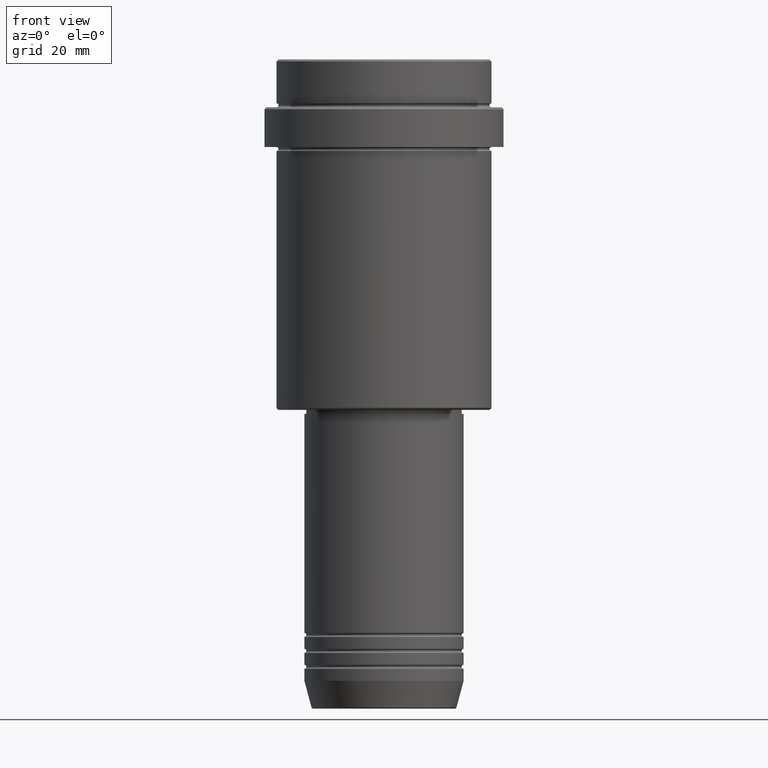
[diagram: clean part render]
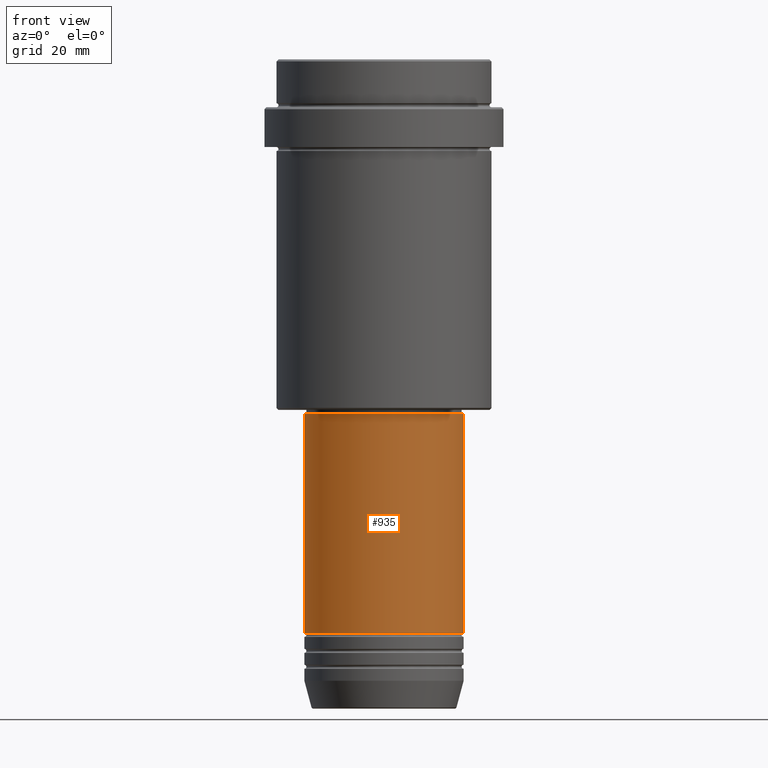
[diagram: same view with one face highlighted and labeled with its STEP entity id]
A machine part, front view. The second image highlights one B-rep face of the part: STEP entity #935.
In plain terms, the highlighted cylindrical surface (partial cylindrical patch) has radius 20 mm, axis along (-0, -0, 1).
Its self-contained STEP definition (entity closure, byte-faithful):
#43 = VERTEX_POINT ( 'NONE', #436 ) ;
#46 = EDGE_CURVE ( 'NONE', #993, #43, #1318, .T. ) ;
#97 = DIRECTION ( 'NONE',  ( -0.000000000000000000, -0.000000000000000000, 1.000000000000000000 ) ) ;
#150 = LINE ( 'NONE', #264, #243 ) ;
#153 = DIRECTION ( 'NONE',  ( -0.000000000000000000, -0.000000000000000000, 1.000000000000000000 ) ) ;
#154 = CARTESIAN_POINT ( 'NONE',  ( -20.00000000000000000, 2.449293598294706513E-15, -143.9999999999999147 ) ) ;
#184 = VERTEX_POINT ( 'NONE', #154 ) ;
#185 = EDGE_CURVE ( 'NONE', #639, #43, #150, .T. ) ;
#186 = FACE_OUTER_BOUND ( 'NONE', #1213, .T. ) ;
#200 = CARTESIAN_POINT ( 'NONE',  ( 0.000000000000000000, 0.000000000000000000, 0.000000000000000000 ) ) ;
#225 = DIRECTION ( 'NONE',  ( 1.000000000000000000, 0.000000000000000000, 0.000000000000000000 ) ) ;
#243 = VECTOR ( 'NONE', #1010, 1000.000000000000000 ) ;
#264 = CARTESIAN_POINT ( 'NONE',  ( 19.99999999999999645, 0.000000000000000000, 0.000000000000000000 ) ) ;
#436 = CARTESIAN_POINT ( 'NONE',  ( 19.99999999999999645, 0.000000000000000000, -89.00000000000001421 ) ) ;
#450 = AXIS2_PLACEMENT_3D ( 'NONE', #1203, #97, #225 ) ;
#547 = LINE ( 'NONE', #981, #793 ) ;
#617 = ORIENTED_EDGE ( 'NONE', *, *, #686, .T. ) ;
#624 = CARTESIAN_POINT ( 'NONE',  ( 0.000000000000000000, 0.000000000000000000, -143.9999999999999147 ) ) ;
#639 = VERTEX_POINT ( 'NONE', #694 ) ;
#686 = EDGE_CURVE ( 'NONE', #184, #639, #1201, .T. ) ;
#694 = CARTESIAN_POINT ( 'NONE',  ( 20.00000000000000000, 0.000000000000000000, -143.9999999999999147 ) ) ;
#769 = AXIS2_PLACEMENT_3D ( 'NONE', #200, #864, #1399 ) ;
#776 = DIRECTION ( 'NONE',  ( -0.000000000000000000, -0.000000000000000000, 1.000000000000000000 ) ) ;
#793 = VECTOR ( 'NONE', #776, 1000.000000000000000 ) ;
#864 = DIRECTION ( 'NONE',  ( -0.000000000000000000, -0.000000000000000000, 1.000000000000000000 ) ) ;
#935 = ADVANCED_FACE ( 'NONE', ( #186 ), #1178, .T. ) ;
#981 = CARTESIAN_POINT ( 'NONE',  ( -19.99999999999999645, 2.449293598294706119E-15, 0.000000000000000000 ) ) ;
#993 = VERTEX_POINT ( 'NONE', #1026 ) ;
#1010 = DIRECTION ( 'NONE',  ( -0.000000000000000000, -0.000000000000000000, 1.000000000000000000 ) ) ;
#1026 = CARTESIAN_POINT ( 'NONE',  ( -19.99999999999999645, 2.449293598294706119E-15, -89.00000000000001421 ) ) ;
#1070 = ORIENTED_EDGE ( 'NONE', *, *, #185, .T. ) ;
#1104 = ORIENTED_EDGE ( 'NONE', *, *, #46, .F. ) ;
#1168 = AXIS2_PLACEMENT_3D ( 'NONE', #624, #153, #1278 ) ;
#1178 = CYLINDRICAL_SURFACE ( 'NONE', #769, 19.99999999999999645 ) ;
#1201 = CIRCLE ( 'NONE', #1168, 20.00000000000000000 ) ;
#1203 = CARTESIAN_POINT ( 'NONE',  ( 0.000000000000000000, 0.000000000000000000, -89.00000000000001421 ) ) ;
#1213 = EDGE_LOOP ( 'NONE', ( #1347, #617, #1070, #1104 ) ) ;
#1278 = DIRECTION ( 'NONE',  ( 1.000000000000000000, 0.000000000000000000, 0.000000000000000000 ) ) ;
#1318 = CIRCLE ( 'NONE', #450, 19.99999999999999645 ) ;
#1347 = ORIENTED_EDGE ( 'NONE', *, *, #1353, .F. ) ;
#1353 = EDGE_CURVE ( 'NONE', #184, #993, #547, .T. ) ;
#1399 = DIRECTION ( 'NONE',  ( 1.000000000000000000, 0.000000000000000000, 0.000000000000000000 ) ) ;